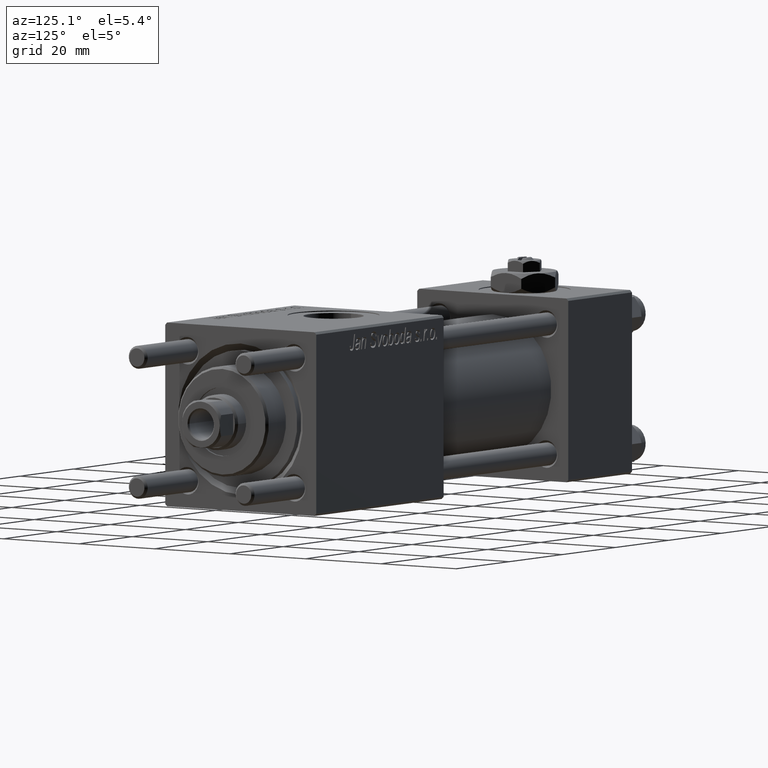
[diagram: clean part render]
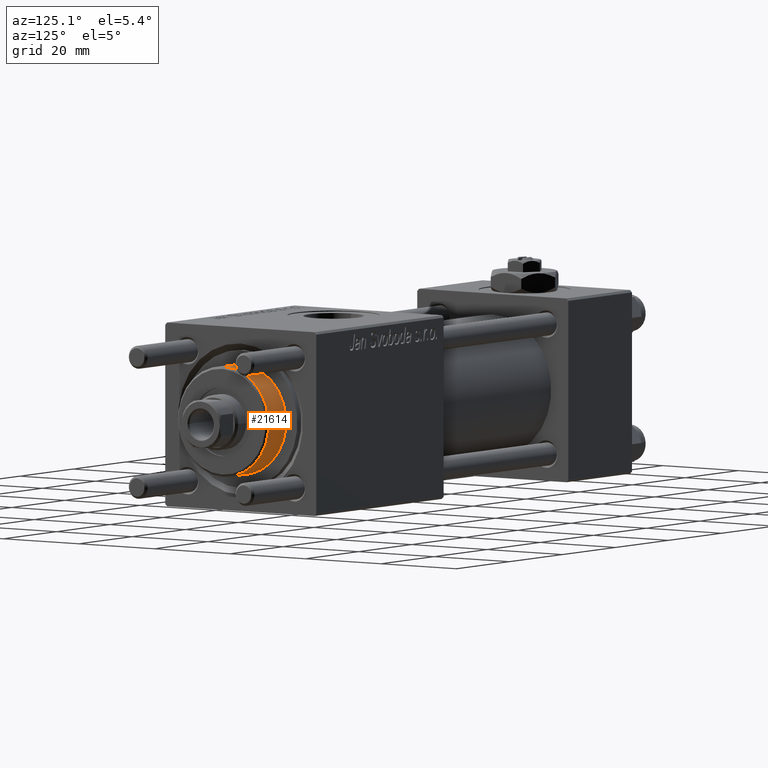
[diagram: same view with one face highlighted and labeled with its STEP entity id]
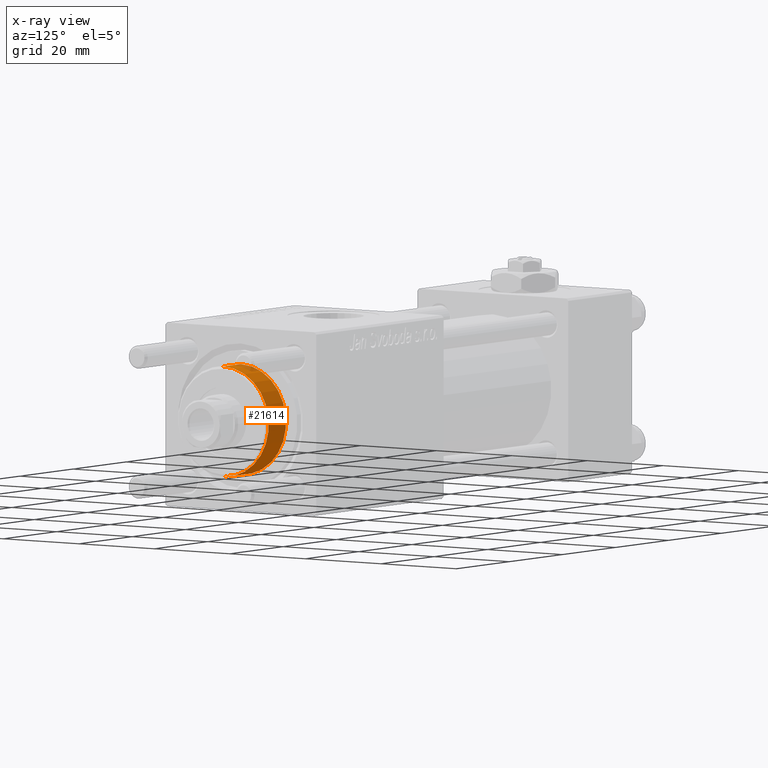
[diagram: x-ray of the same camera — body ghosted, the highlighted face saturated]
A machine part, auxiliary view. The second image highlights one B-rep face of the part: STEP entity #21614.
The next image is the same camera in x-ray: the body ghosted, the highlighted face saturated — about 4% of this face is hidden behind the body in this view.
In plain terms, the highlighted cylindrical surface (partial cylindrical patch) has radius 12 mm, axis along (-1, -0, 0).
Its self-contained STEP definition (entity closure, byte-faithful):
#539 = CARTESIAN_POINT ( 'NONE',  ( 12.00000000000000178, 1.469576158976824144E-15, 35.70000000000000284 ) ) ;
#2276 = EDGE_LOOP ( 'NONE', ( #8669, #41046, #54809, #12245 ) ) ;
#3165 = EDGE_CURVE ( 'NONE', #19119, #43809, #48354, .T. ) ;
#5835 = CARTESIAN_POINT ( 'NONE',  ( 12.00000000000000178, 1.469576158976824144E-15, 28.69999999999999929 ) ) ;
#8669 = ORIENTED_EDGE ( 'NONE', *, *, #3165, .T. ) ;
#11048 = LINE ( 'NONE', #24653, #18025 ) ;
#12168 = DIRECTION ( 'NONE',  ( -1.000000000000000000, 0.000000000000000000, 0.000000000000000000 ) ) ;
#12245 = ORIENTED_EDGE ( 'NONE', *, *, #49931, .F. ) ;
#12334 = DIRECTION ( 'NONE',  ( 1.000000000000000000, 0.000000000000000000, 0.000000000000000000 ) ) ;
#13213 = CARTESIAN_POINT ( 'NONE',  ( 0.000000000000000000, 0.000000000000000000, 28.69999999999999929 ) ) ;
#14026 = DIRECTION ( 'NONE',  ( 0.000000000000000000, 0.000000000000000000, -1.000000000000000000 ) ) ;
#15289 = AXIS2_PLACEMENT_3D ( 'NONE', #18474, #14026, #32063 ) ;
#18025 = VECTOR ( 'NONE', #37404, 1000.000000000000000 ) ;
#18474 = CARTESIAN_POINT ( 'NONE',  ( 0.000000000000000000, 0.000000000000000000, 35.19999999999999574 ) ) ;
#18817 = CARTESIAN_POINT ( 'NONE',  ( 12.00000000000000178, 1.469576158976824144E-15, 35.19999999999999574 ) ) ;
#19119 = VERTEX_POINT ( 'NONE', #42608 ) ;
#21614 = ADVANCED_FACE ( 'NONE', ( #53284 ), #52980, .T. ) ;
#24653 = CARTESIAN_POINT ( 'NONE',  ( -12.00000000000000178, 0.000000000000000000, 35.70000000000000284 ) ) ;
#26676 = DIRECTION ( 'NONE',  ( -0.000000000000000000, -0.000000000000000000, -1.000000000000000000 ) ) ;
#29544 = CIRCLE ( 'NONE', #46537, 12.00000000000000178 ) ;
#32063 = DIRECTION ( 'NONE',  ( 1.000000000000000000, 0.000000000000000000, 0.000000000000000000 ) ) ;
#32161 = VECTOR ( 'NONE', #50498, 1000.000000000000000 ) ;
#37404 = DIRECTION ( 'NONE',  ( -0.000000000000000000, -0.000000000000000000, -1.000000000000000000 ) ) ;
#37853 = VERTEX_POINT ( 'NONE', #5835 ) ;
#40741 = LINE ( 'NONE', #539, #32161 ) ;
#41046 = ORIENTED_EDGE ( 'NONE', *, *, #47557, .T. ) ;
#41606 = AXIS2_PLACEMENT_3D ( 'NONE', #48858, #26676, #12168 ) ;
#42416 = VERTEX_POINT ( 'NONE', #46202 ) ;
#42608 = CARTESIAN_POINT ( 'NONE',  ( -12.00000000000000178, 0.000000000000000000, 35.19999999999999574 ) ) ;
#43809 = VERTEX_POINT ( 'NONE', #18817 ) ;
#46202 = CARTESIAN_POINT ( 'NONE',  ( -12.00000000000000178, 0.000000000000000000, 28.69999999999999929 ) ) ;
#46537 = AXIS2_PLACEMENT_3D ( 'NONE', #13213, #52850, #12334 ) ;
#47557 = EDGE_CURVE ( 'NONE', #43809, #37853, #40741, .T. ) ;
#48354 = CIRCLE ( 'NONE', #15289, 12.00000000000000178 ) ;
#48858 = CARTESIAN_POINT ( 'NONE',  ( 0.000000000000000000, 0.000000000000000000, 35.70000000000000284 ) ) ;
#49931 = EDGE_CURVE ( 'NONE', #19119, #42416, #11048, .T. ) ;
#50498 = DIRECTION ( 'NONE',  ( -0.000000000000000000, -0.000000000000000000, -1.000000000000000000 ) ) ;
#52850 = DIRECTION ( 'NONE',  ( 0.000000000000000000, 0.000000000000000000, 1.000000000000000000 ) ) ;
#52980 = CYLINDRICAL_SURFACE ( 'NONE', #41606, 12.00000000000000178 ) ;
#53284 = FACE_OUTER_BOUND ( 'NONE', #2276, .T. ) ;
#54809 = ORIENTED_EDGE ( 'NONE', *, *, #55045, .T. ) ;
#55045 = EDGE_CURVE ( 'NONE', #37853, #42416, #29544, .T. ) ;